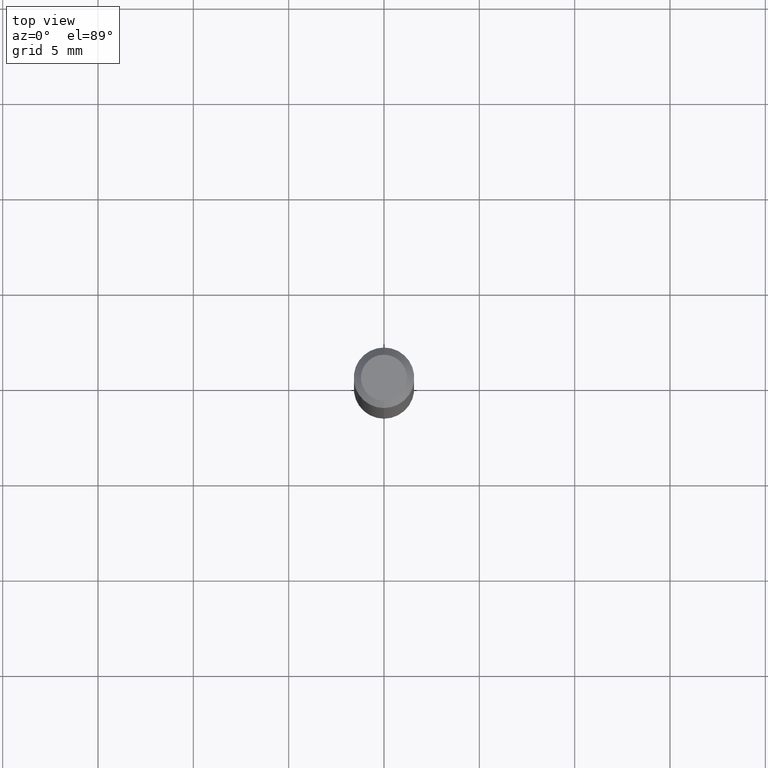
[diagram: clean part render]
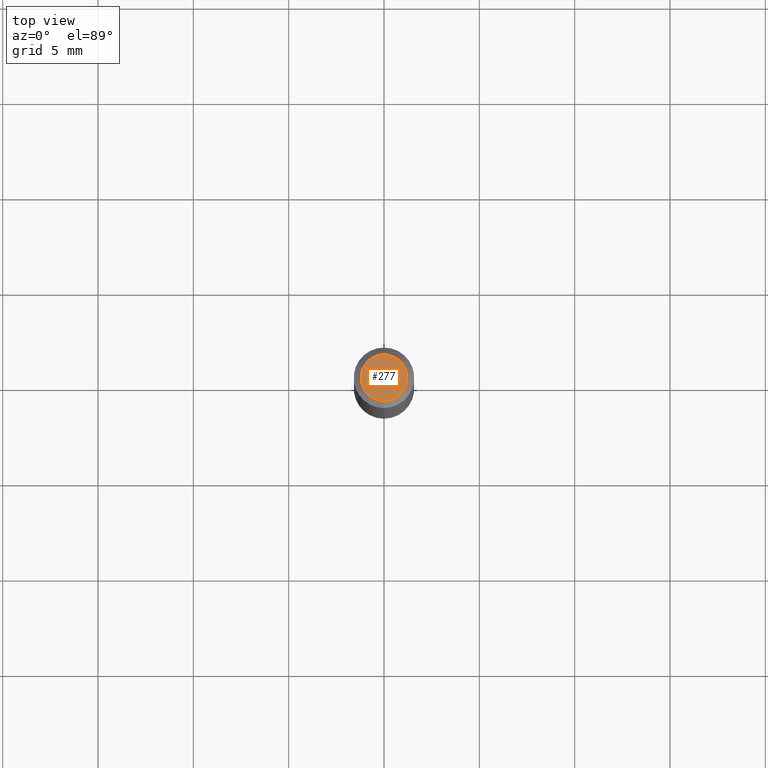
[diagram: same view with one face highlighted and labeled with its STEP entity id]
A machine part, top view. The second image highlights one B-rep face of the part: STEP entity #277.
In plain terms, the highlighted planar face has unit normal (0, -0, -1).
Its self-contained STEP definition (entity closure, byte-faithful):
#33 = ORIENTED_EDGE ( 'NONE', *, *, #471, .T. ) ;
#46 = CIRCLE ( 'NONE', #415, 0.04749999999999999362 ) ;
#60 = DIRECTION ( 'NONE',  ( -2.445462433583878327E-29, 3.491490464770853436E-15, 1.000000000000000000 ) ) ;
#113 = EDGE_LOOP ( 'NONE', ( #464, #33 ) ) ;
#125 = FACE_OUTER_BOUND ( 'NONE', #113, .T. ) ;
#164 = AXIS2_PLACEMENT_3D ( 'NONE', #258, #60, #218 ) ;
#193 = DIRECTION ( 'NONE',  ( -2.445462433583878327E-29, 3.491490464770853436E-15, 1.000000000000000000 ) ) ;
#196 = CARTESIAN_POINT ( 'NONE',  ( 8.024699732624142667E-45, -1.145720425483910570E-30, -3.281465142305935918E-16 ) ) ;
#218 = DIRECTION ( 'NONE',  ( -6.982962677686266711E-15, -1.000000000000000000, 3.491490464770853831E-15 ) ) ;
#219 = VERTEX_POINT ( 'NONE', #377 ) ;
#229 = CARTESIAN_POINT ( 'NONE',  ( -3.773273898774340269E-16, -0.04749999999999999362, -1.623007171539780595E-16 ) ) ;
#258 = CARTESIAN_POINT ( 'NONE',  ( 8.024699732624142667E-45, -1.145720425483910570E-30, -3.281465142305935918E-16 ) ) ;
#266 = PLANE ( 'NONE',  #383 ) ;
#277 = ADVANCED_FACE ( 'NONE', ( #125 ), #266, .F. ) ;
#292 = VERTEX_POINT ( 'NONE', #229 ) ;
#339 = DIRECTION ( 'NONE',  ( -6.982962677686266711E-15, -1.000000000000000000, 3.491490464770853831E-15 ) ) ;
#348 = CARTESIAN_POINT ( 'NONE',  ( 3.316907271900976096E-16, 0.04749999999999999362, -3.299190541919122542E-16 ) ) ;
#377 = CARTESIAN_POINT ( 'NONE',  ( 3.840629472727447874E-16, 0.04749999999999999362, -4.939923113072091241E-16 ) ) ;
#383 = AXIS2_PLACEMENT_3D ( 'NONE', #348, #424, #459 ) ;
#415 = AXIS2_PLACEMENT_3D ( 'NONE', #196, #193, #339 ) ;
#424 = DIRECTION ( 'NONE',  ( 2.445462433583877767E-29, -3.491490464770853831E-15, -1.000000000000000000 ) ) ;
#431 = EDGE_CURVE ( 'NONE', #219, #292, #484, .T. ) ;
#459 = DIRECTION ( 'NONE',  ( 6.982962677686265922E-15, 1.000000000000000000, -3.491490464770853831E-15 ) ) ;
#464 = ORIENTED_EDGE ( 'NONE', *, *, #431, .T. ) ;
#471 = EDGE_CURVE ( 'NONE', #292, #219, #46, .T. ) ;
#484 = CIRCLE ( 'NONE', #164, 0.04749999999999999362 ) ;